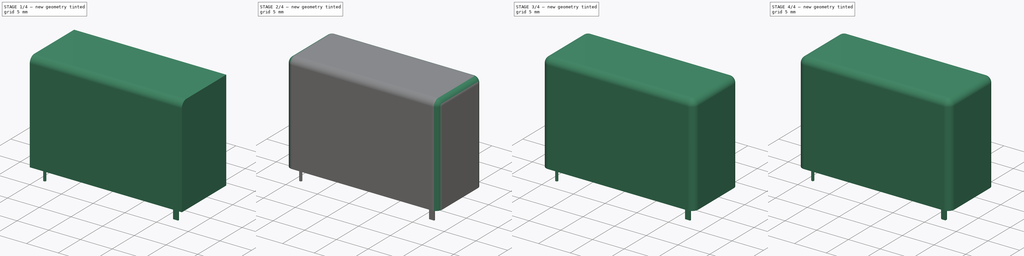
[diagram: build sequence overview — one tinted view per stage of 4, left to right]
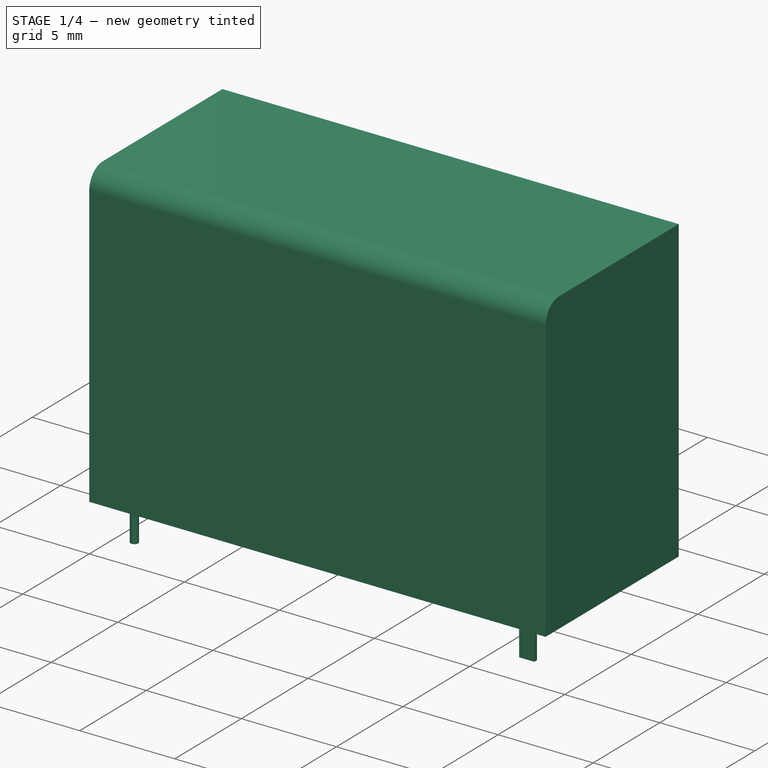
[diagram: stage 1 of 4 — iso view after this stage's code; geometry added in this stage tinted green]
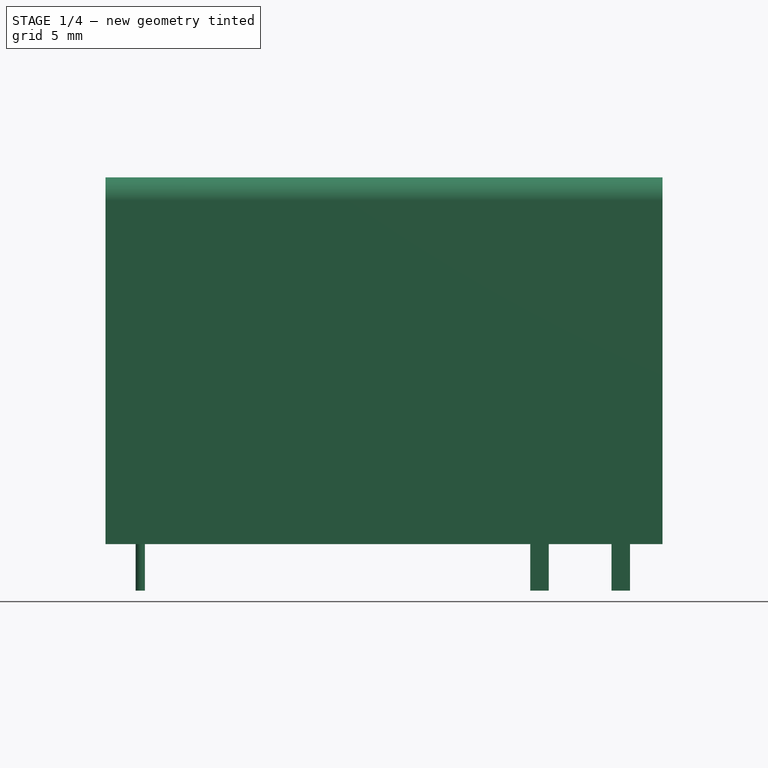
[diagram: stage 1 of 4 — front view after this stage's code; geometry added in this stage tinted green]
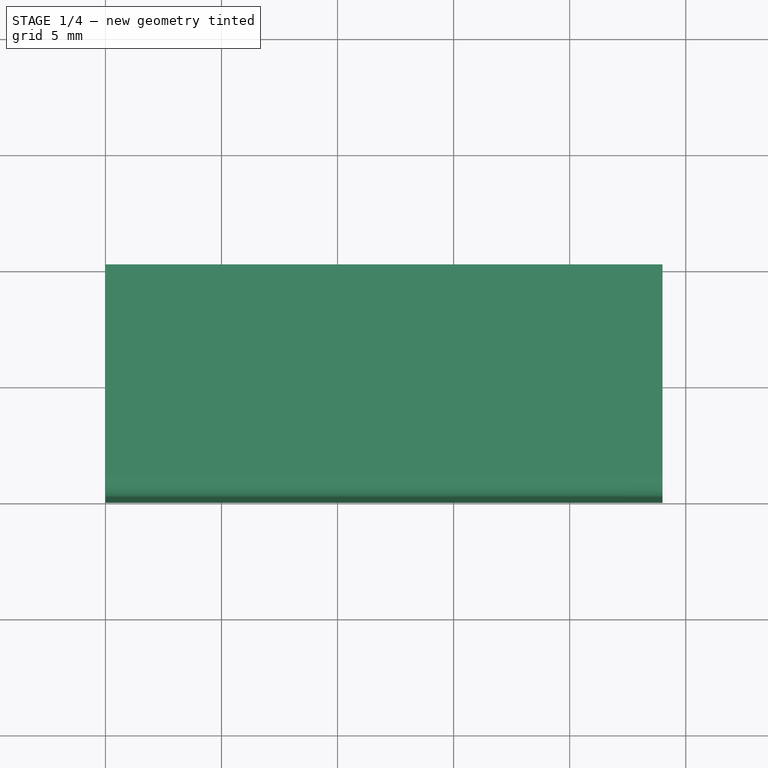
[diagram: stage 1 of 4 — top view after this stage's code; geometry added in this stage tinted green]
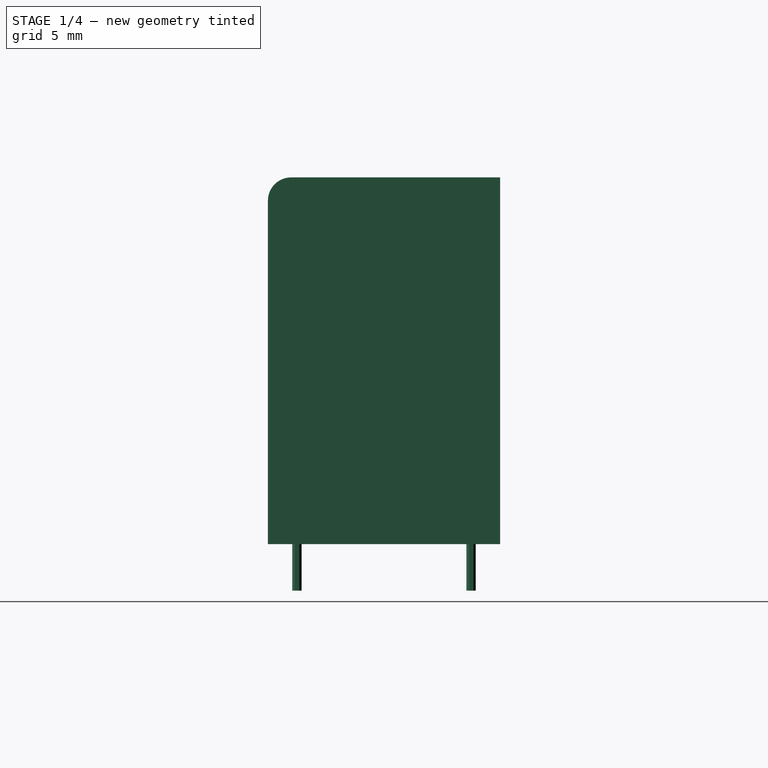
[diagram: stage 1 of 4 — right view after this stage's code; geometry added in this stage tinted green]
FCSTD DOCUMENT  (FreeCAD 0.18.4R)
Label: Relay_3D
License: All rights reserved
LicenseURL: http://en.wikipedia.org/wiki/All_rights_reserved
objects: PartDesign::Fillet×5, PartDesign::Chamfer×4, Sketcher::SketchObject×2, PartDesign::Pad×2, PartDesign::Body×1
note: 16 computed .brp shape members not serialized (recipe doc carries the construction recipe); baked Part::Feature solids carry a one-line shape summary decoded from their .brp

FEATURE [Sketcher::SketchObject] Sketch
  MapMode = 5
  Support = -> [XY_Plane]
  sketch-geometry (4):
    g0: LineSegment StartX=0 StartY=0 StartZ=0 EndX=24 EndY=0 EndZ=0
    g1: LineSegment StartX=24 StartY=0 StartZ=0 EndX=24 EndY=-10 EndZ=0
    g2: LineSegment StartX=24 StartY=-10 StartZ=0 EndX=0 EndY=-10 EndZ=0
    g3: LineSegment StartX=0 StartY=-10 StartZ=0 EndX=0 EndY=0 EndZ=0
  constraints (11):
    c: Coincident(g0,g1)
    c: Coincident(g1,g2)
    c: Coincident(g2,g3)
    c: Coincident(g3,g0)
    c: Horizontal(g0)
    c: Horizontal(g2)
    c: Vertical(g1)
    c: Vertical(g3)
    c: Coincident(g0,g-1)
    c: DistanceX(g0,g0) = 24
    c: DistanceY(g3,g3) = 10
FEATURE [PartDesign::Pad] Pad
  Length = 15.8
  Length2 = 100
  Profile = -> Sketch
  Type = 0
FEATURE [Sketcher::SketchObject] Sketch001
  ExternalGeometry = -> [Pad]
  MapMode = 5
  Support = -> [XY_Plane]
  sketch-geometry (10):
    g0: Circle CenterX=1.5 CenterY=-1.25 CenterZ=0 NormalX=0 NormalY=0 NormalZ=1 AngleXU=0 Radius=0.2
    g1: Circle CenterX=1.5 CenterY=-8.75 CenterZ=0 NormalX=0 NormalY=0 NormalZ=1 AngleXU=0 Radius=0.2
    g2: LineSegment StartX=19.1 StartY=-1.15 StartZ=0 EndX=18.3 EndY=-1.15 EndZ=0
    g3: LineSegment StartX=18.3 StartY=-1.15 StartZ=0 EndX=18.3 EndY=-1.35 EndZ=0
    g4: LineSegment StartX=18.3 StartY=-1.35 StartZ=0 EndX=19.1 EndY=-1.35 EndZ=0
    g5: LineSegment StartX=19.1 StartY=-1.35 StartZ=0 EndX=19.1 EndY=-1.15 EndZ=0
    g6: LineSegment StartX=22.6 StartY=-8.65 StartZ=0 EndX=21.8 EndY=-8.65 EndZ=0
    g7: LineSegment StartX=21.8 StartY=-8.65 StartZ=0 EndX=21.8 EndY=-8.85 EndZ=0
    g8: LineSegment StartX=21.8 StartY=-8.85 StartZ=0 EndX=22.6 EndY=-8.85 EndZ=0
    g9: LineSegment StartX=22.6 StartY=-8.85 StartZ=0 EndX=22.6 EndY=-8.65 EndZ=0
  constraints (28):
    c: Radius(g0) = 0.2
    c: DistanceY(g0,g-1) = 1.25
    c: DistanceX(g-1,g0) = 1.5
    c: Radius(g1) = 0.2
    c: DistanceX(g-5,g1) = 1.5
    c: DistanceY(g1,g0) = 7.5
    c: Coincident(g2,g3)
    c: Coincident(g3,g4)
    c: Coincident(g4,g5)
    c: Coincident(g5,g2)
    c: Horizontal(g2)
    c: Horizontal(g4)
    c: Vertical(g3)
    c: Vertical(g5)
    c: DistanceX(g2,g2) = 0.8
    c: Coincident(g6,g7)
    c: Coincident(g7,g8)
    c: Coincident(g8,g9)
    c: Coincident(g9,g6)
    c: Horizontal(g6)
    c: Horizontal(g8)
    c: Vertical(g7)
    c: Vertical(g9)
    c: DistanceY(g9,g9) = 0.2
    c: DistanceX(g6,g6) = 0.8
    c: DistanceX(g1,g6) = 21.1
    c: DistanceX(g0,g2) = 17.6
    c: DistanceY(g5,g5) = 0.2
FEATURE [PartDesign::Pad] Pad001
  BaseFeature = -> Pad
  Length = 2
  Length2 = 100
  Profile = -> Sketch001
  Reversed = true
  Type = 0
FEATURE [PartDesign::Fillet] Fillet
  Base = -> Pad001 [Edge22]
  BaseFeature = -> Pad001
  Radius = 1
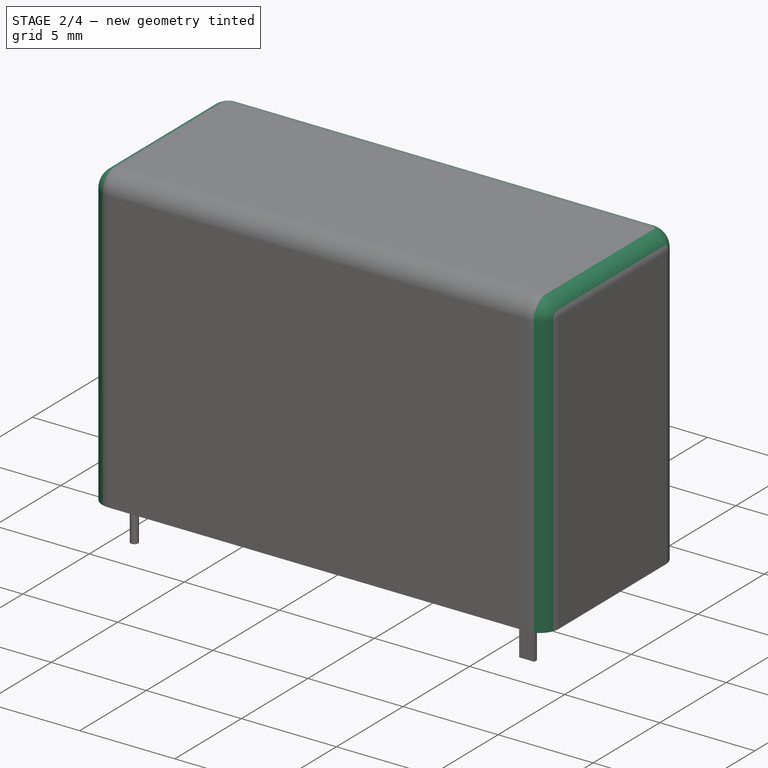
[diagram: stage 2 of 4 — iso view after this stage's code; geometry added in this stage tinted green]
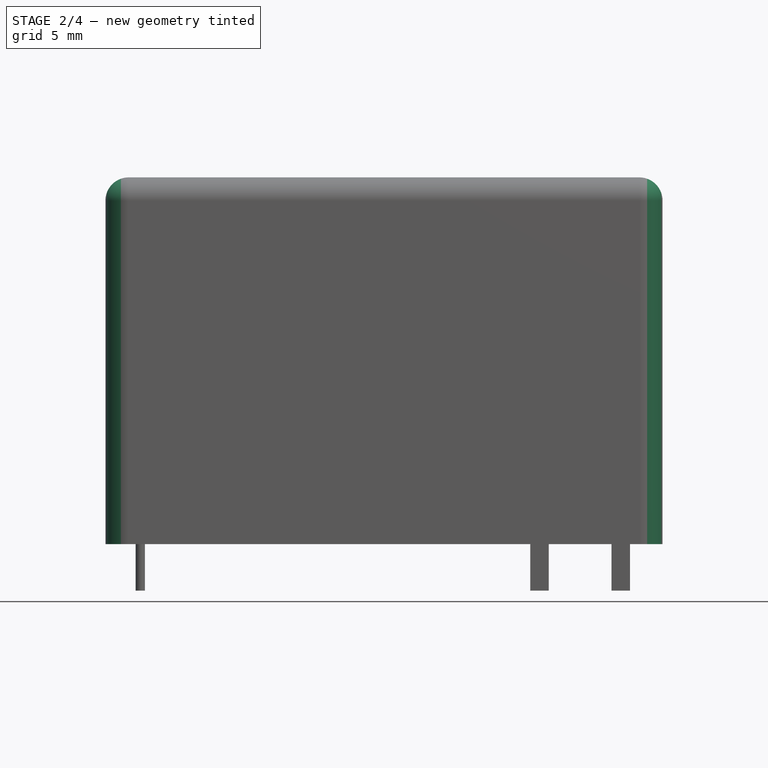
[diagram: stage 2 of 4 — front view after this stage's code; geometry added in this stage tinted green]
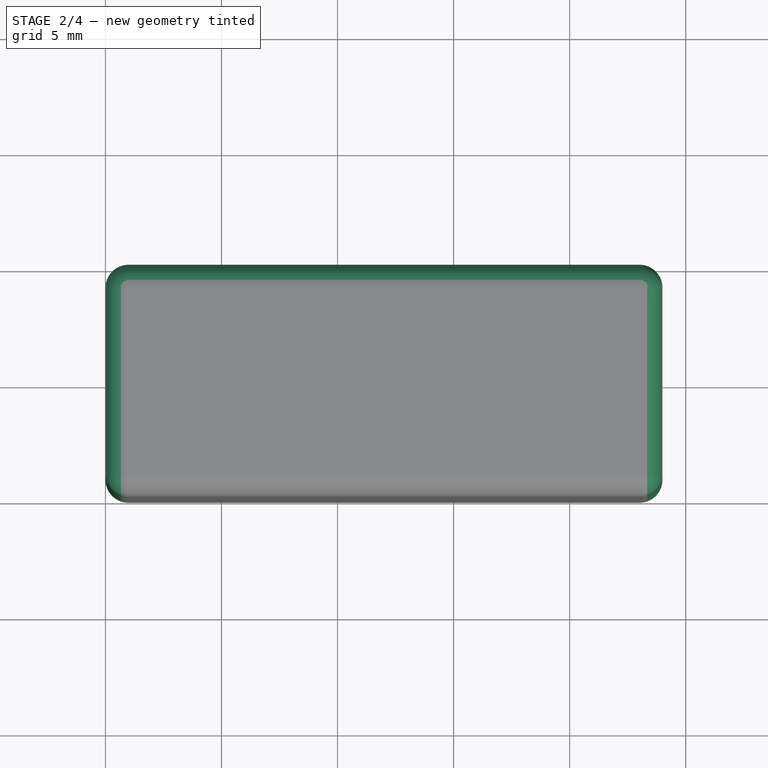
[diagram: stage 2 of 4 — top view after this stage's code; geometry added in this stage tinted green]
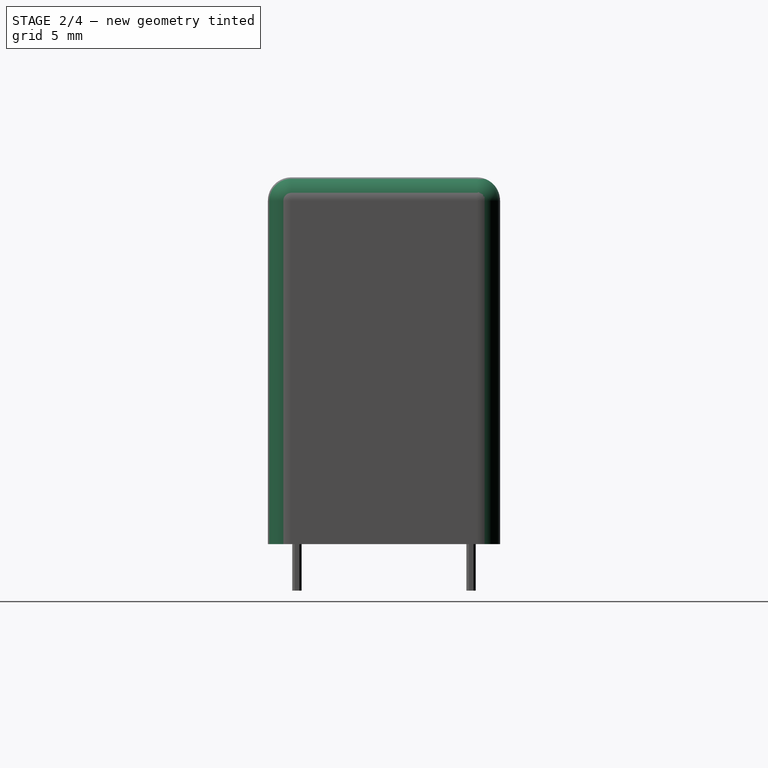
[diagram: stage 2 of 4 — right view after this stage's code; geometry added in this stage tinted green]
FEATURE [PartDesign::Fillet] Fillet001
  Base = -> Fillet [Edge23]
  BaseFeature = -> Fillet
  Radius = 1
FEATURE [PartDesign::Fillet] Fillet002
  Base = -> Fillet001 [Edge27]
  BaseFeature = -> Fillet001
  Radius = 1
FEATURE [PartDesign::Fillet] Fillet003
  Base = -> Fillet002 [Edge1]
  BaseFeature = -> Fillet002
  Radius = 1
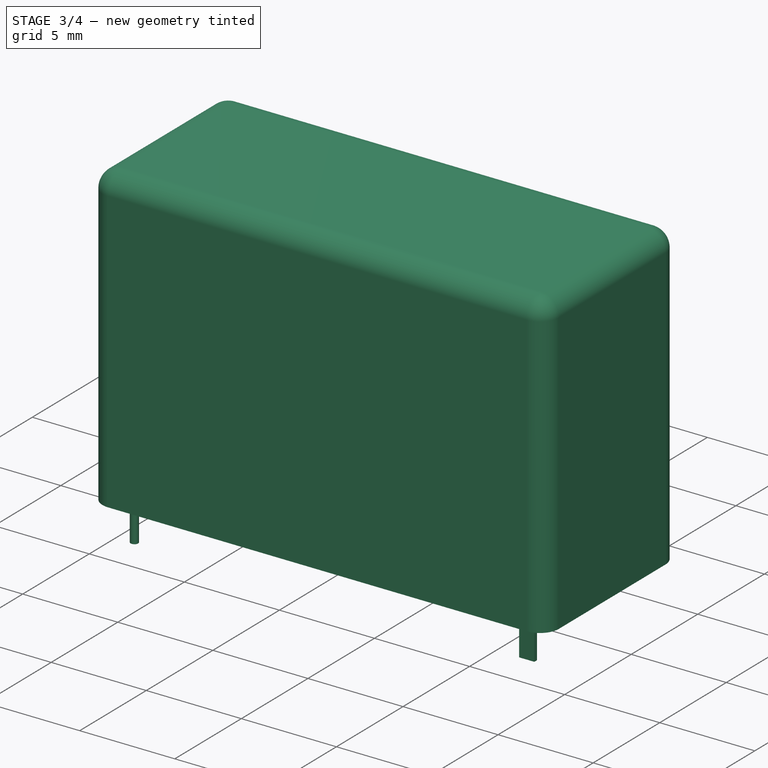
[diagram: stage 3 of 4 — iso view after this stage's code; geometry added in this stage tinted green]
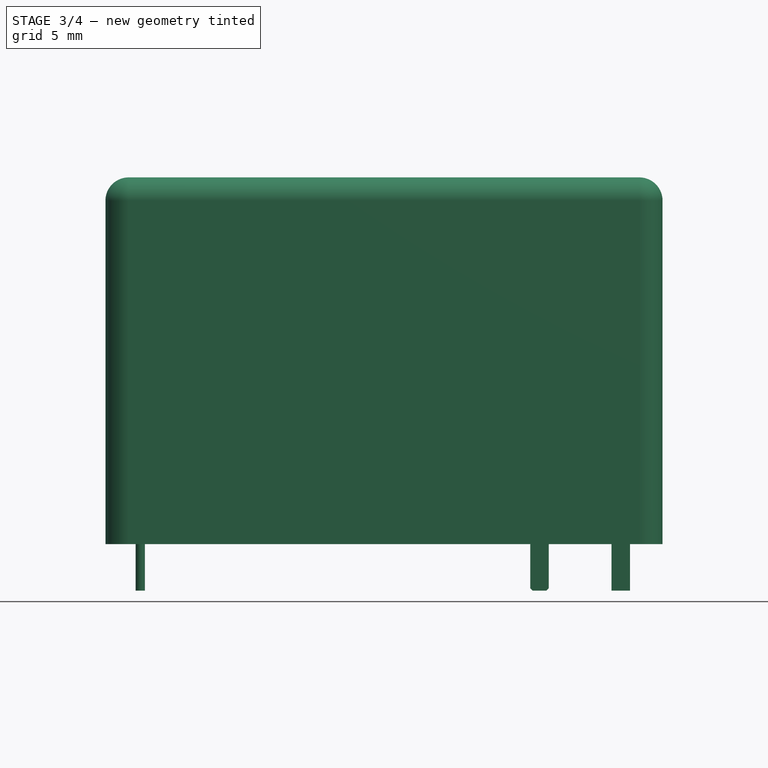
[diagram: stage 3 of 4 — front view after this stage's code; geometry added in this stage tinted green]
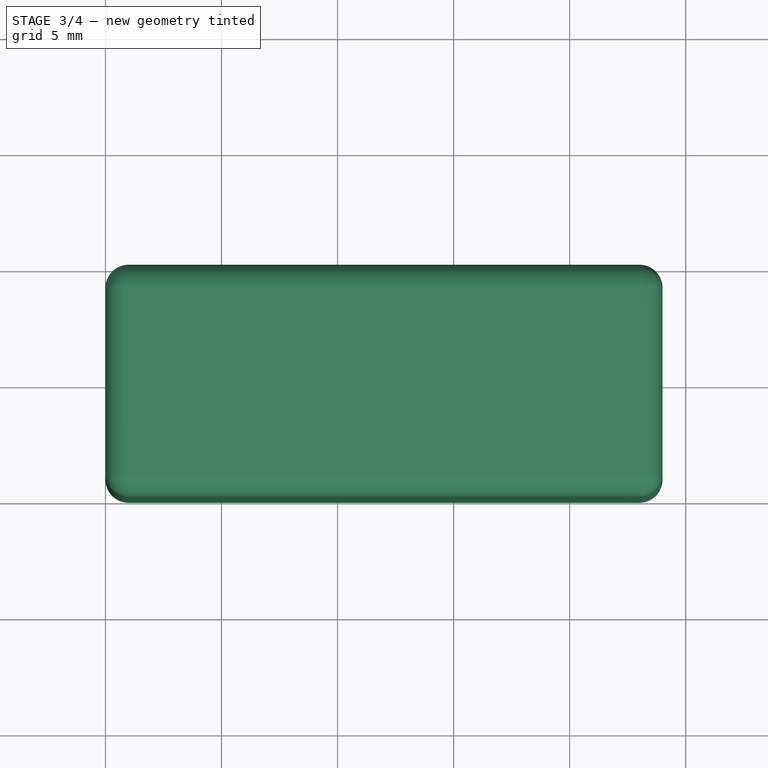
[diagram: stage 3 of 4 — top view after this stage's code; geometry added in this stage tinted green]
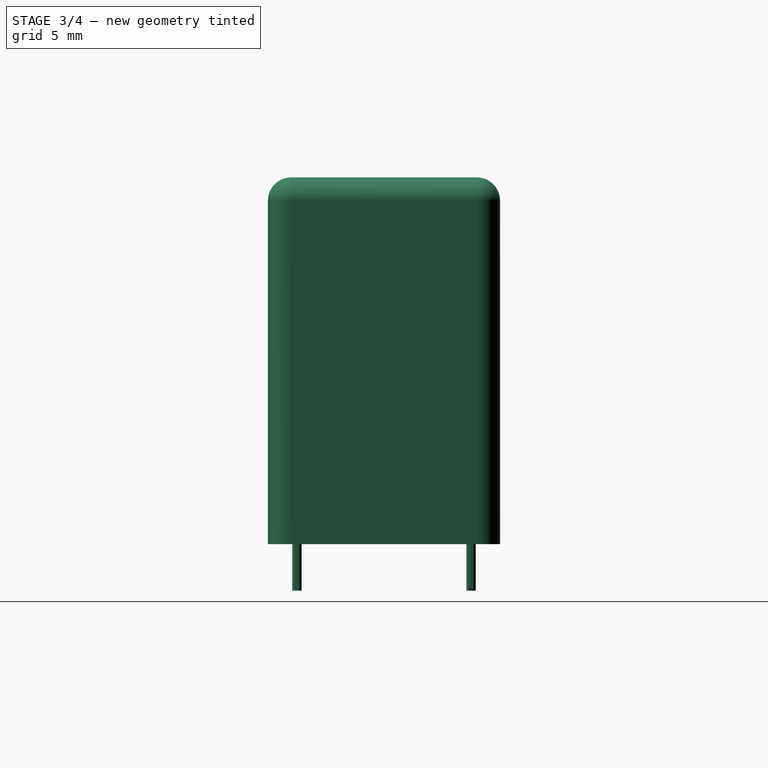
[diagram: stage 3 of 4 — right view after this stage's code; geometry added in this stage tinted green]
FEATURE [PartDesign::Chamfer] Chamfer
  Base = -> Fillet003 [Edge40]
  BaseFeature = -> Fillet003
  Size = 0.1
FEATURE [PartDesign::Chamfer] Chamfer001
  Base = -> Chamfer [Edge29]
  BaseFeature = -> Chamfer
  Size = 0.1
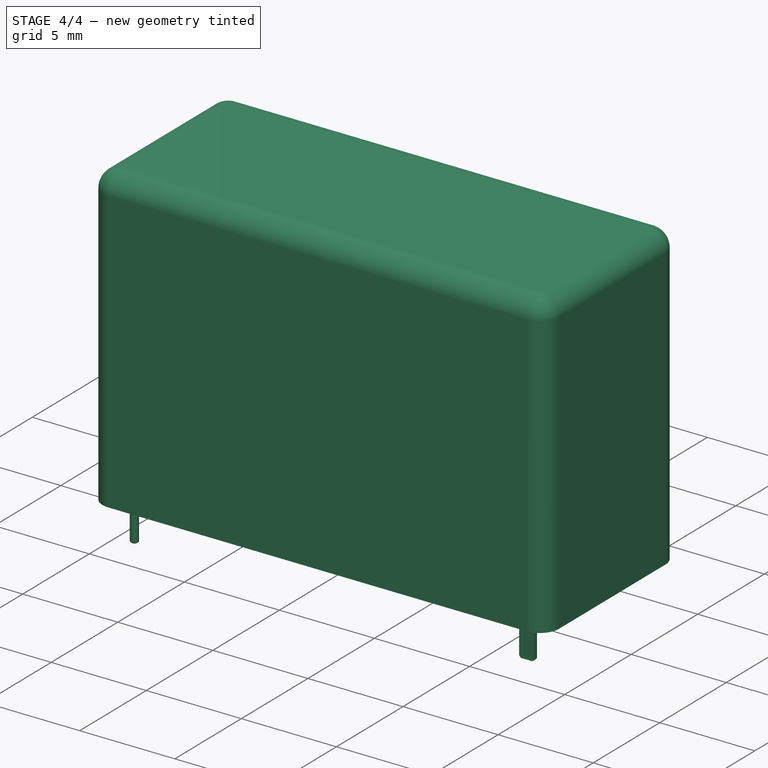
[diagram: stage 4 of 4 — iso view after this stage's code; geometry added in this stage tinted green]
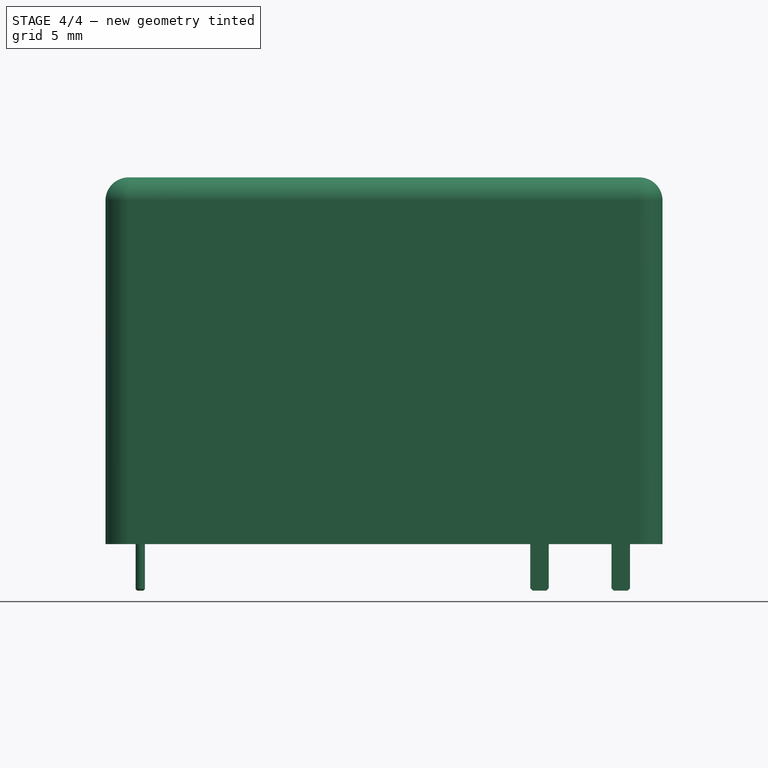
[diagram: stage 4 of 4 — front view after this stage's code; geometry added in this stage tinted green]
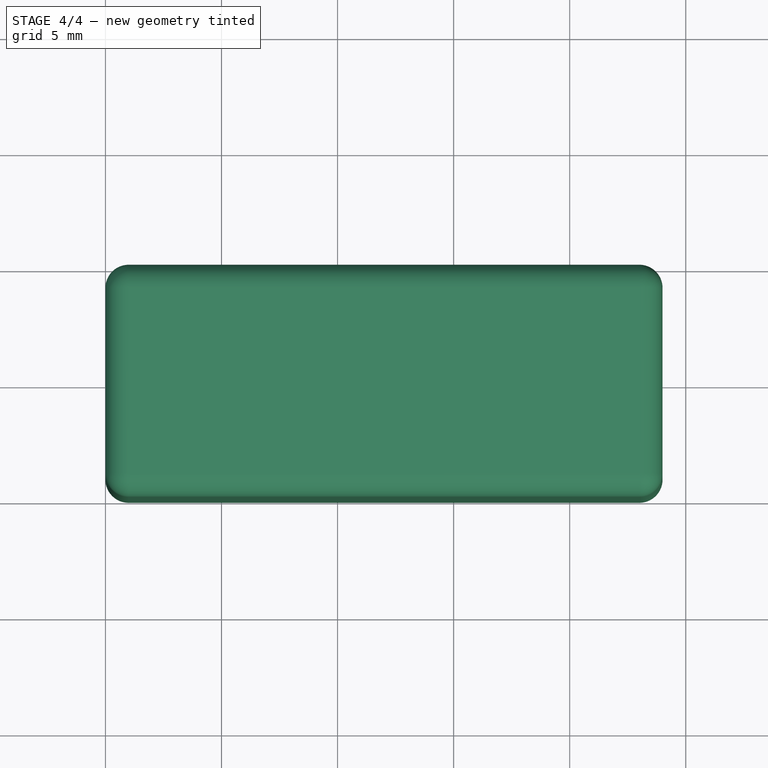
[diagram: stage 4 of 4 — top view after this stage's code; geometry added in this stage tinted green]
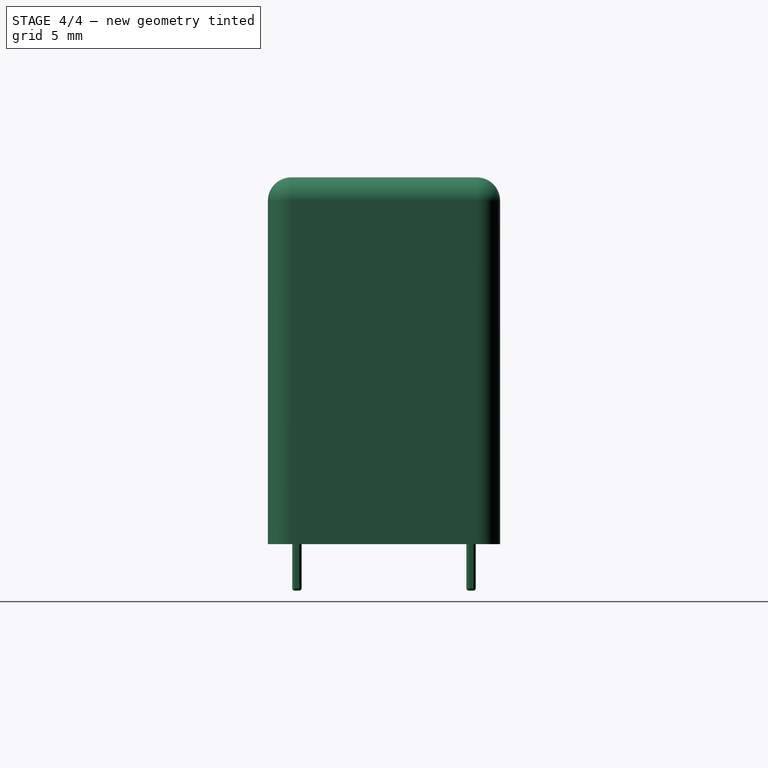
[diagram: stage 4 of 4 — right view after this stage's code; geometry added in this stage tinted green]
FEATURE [PartDesign::Chamfer] Chamfer002
  Base = -> Chamfer001 [Edge59]
  BaseFeature = -> Chamfer001
  Size = 0.1
FEATURE [PartDesign::Chamfer] Chamfer003
  Base = -> Chamfer002 [Edge28]
  BaseFeature = -> Chamfer002
  Size = 0.1
FEATURE [PartDesign::Fillet] Fillet004
  Base = -> Chamfer003 [Edge62,Edge64]
  BaseFeature = -> Chamfer003
  Radius = 0.1
FEATURE [PartDesign::Body] Body
  Group = -> [Sketch,Pad,Sketch001,Pad001,Fillet,Fillet001,Fillet002,Fillet003,Chamfer,Chamfer001,Chamfer002,Chamfer003,Fillet004]
  Origin = -> Origin
  Tip = -> Fillet004
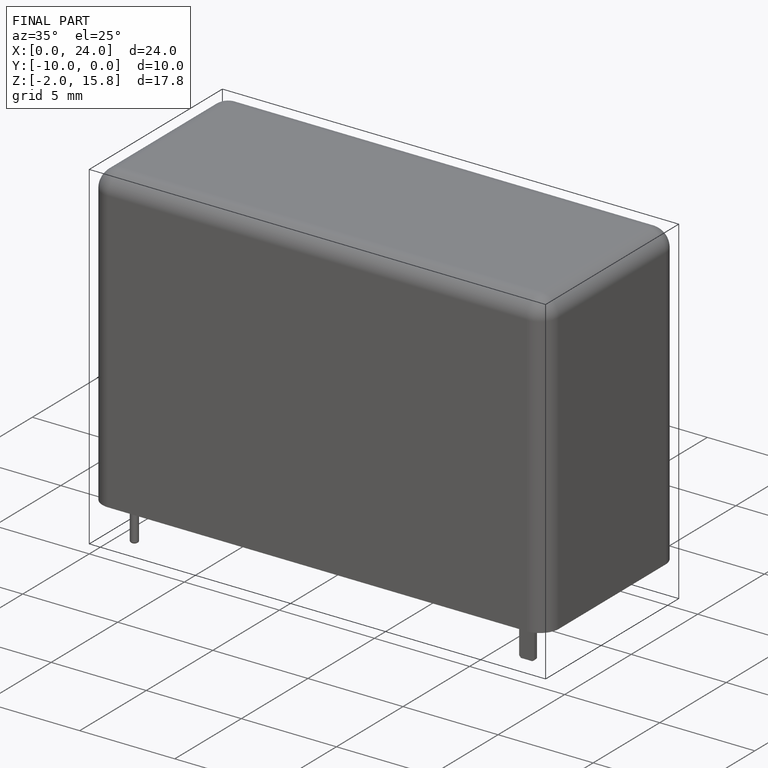
[diagram: finished part — iso view with bounding-box wireframe]
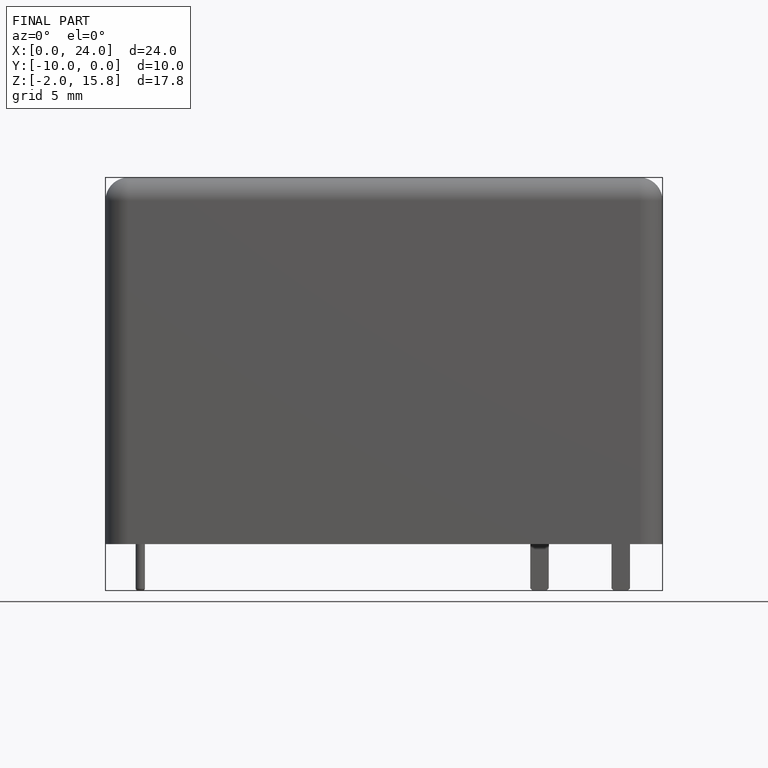
[diagram: finished part — front view with bounding-box wireframe]
